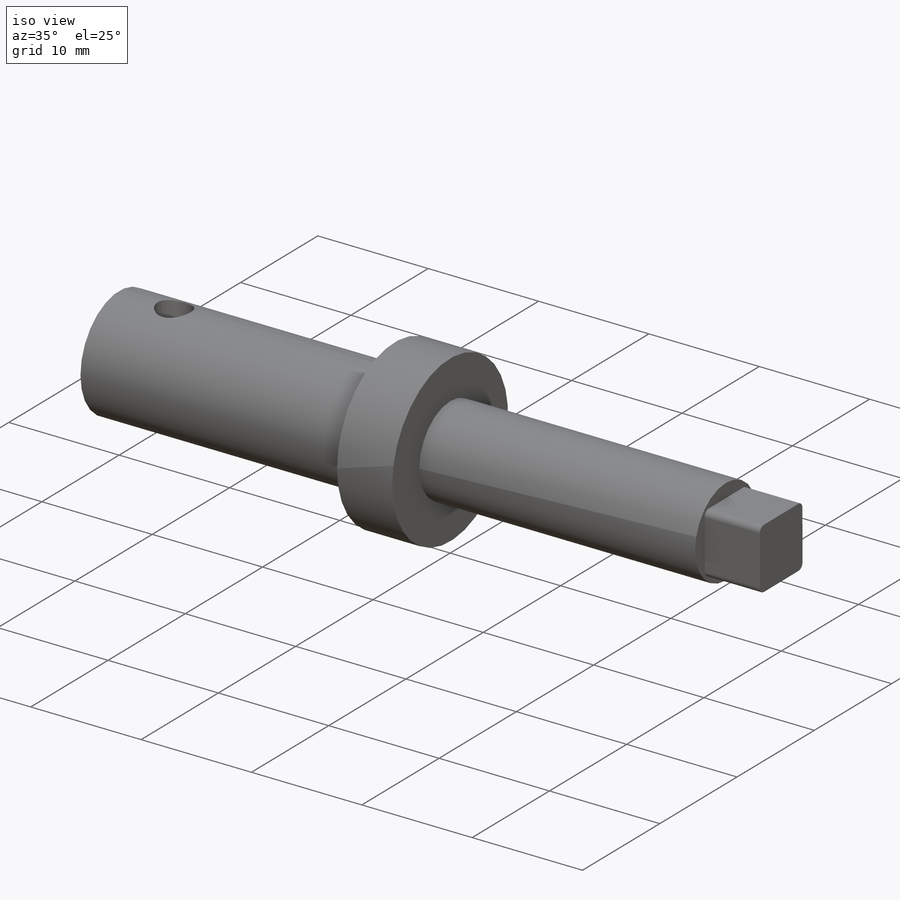
[diagram: iso view]
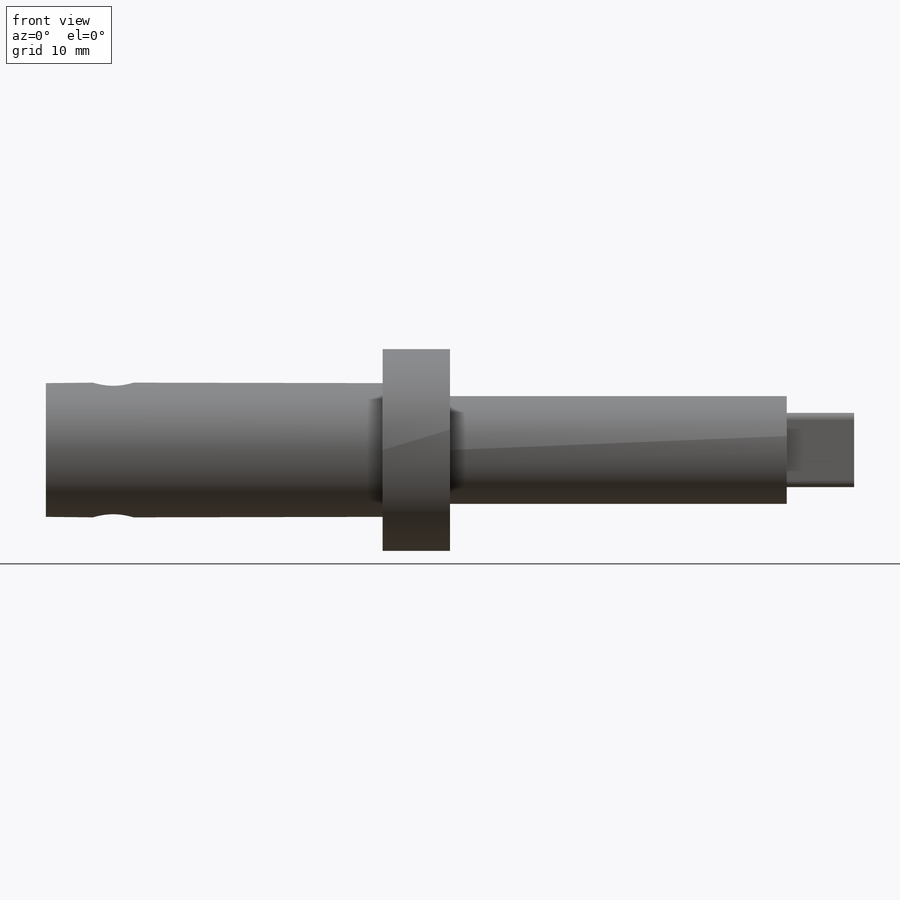
[diagram: front view]
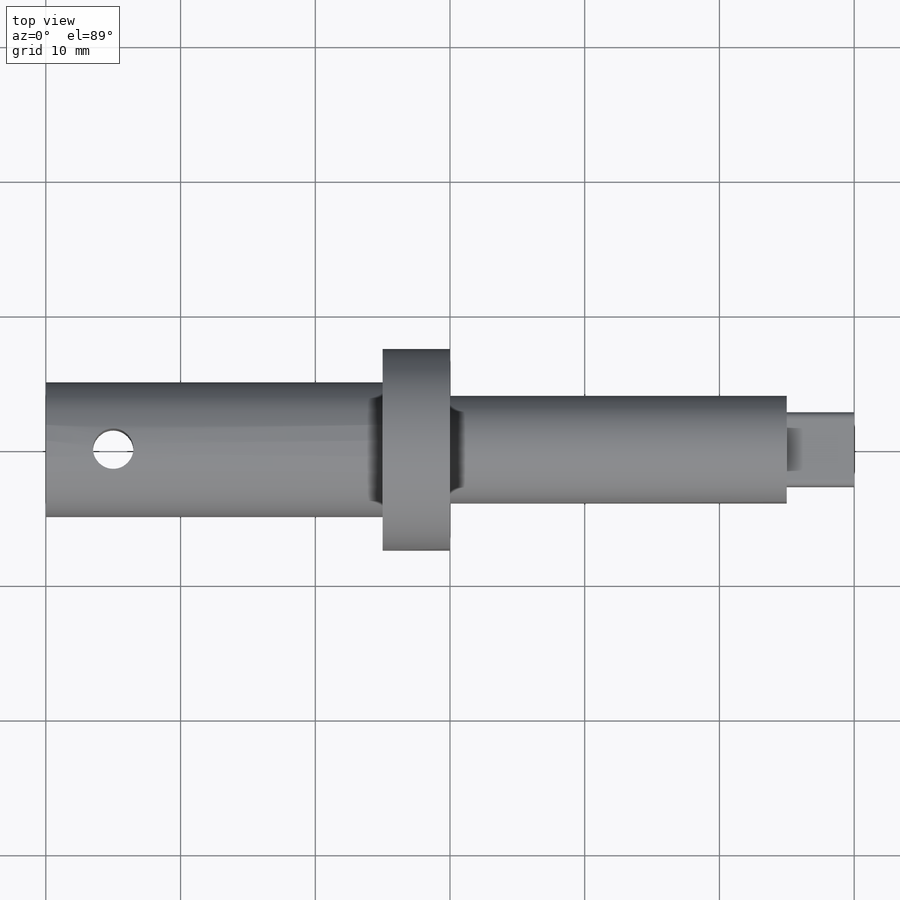
[diagram: top view]
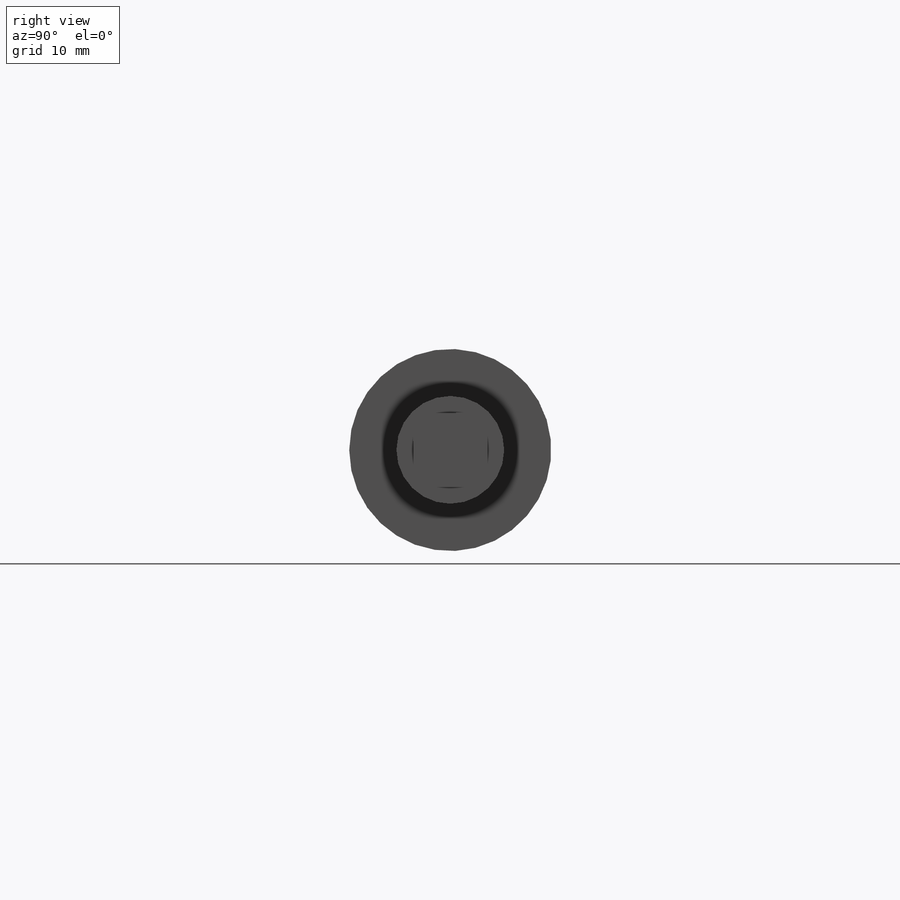
[diagram: right view]
SOLIDWORKS PART (.sldprt)
format: sldprt  version: not decoded by parser v0  size: 221,184 bytes
history: native  units: mm
features: plane x3, sketch x3, material x1, revolve x1, cut_extrude x1, fillet x1 (+10 scaffold rows collapsed)
feature tree (20):
  scaffold x10  (default folders/planes/origin — collapsed)
  material  "材质 <未指定>"
  plane  "前视基准面"
  plane  "上视基准面"
  plane  "右视基准面"
  sketch  "草图1"  dims[D1=10.0mm D2=15.0mm D3=8.0mm D4=25.0mm D5=5.0mm D6=25.0mm]
  revolve  "旋转1"  Angle=360deg
  sketch  "草图2"  dims[D2=3.0mm D1=5.0mm]
  cut_extrude  "切除-拉伸1"  Depth=10mm
  sketch  "草图3"  dims[c1.D2=~5.500019mm c1.D1=5.5mm c1.凸台-拉伸1=0.0deg c2.D1=5.0mm]
  fillet  "圆角1"  Radius=0.5mm
decode coverage: 6 of 6 modeling features carry decoded parameters
note: ~ marks probable driven/reference dimensions
note: suppression state not decoded; provenance and decode notes live in map.json
